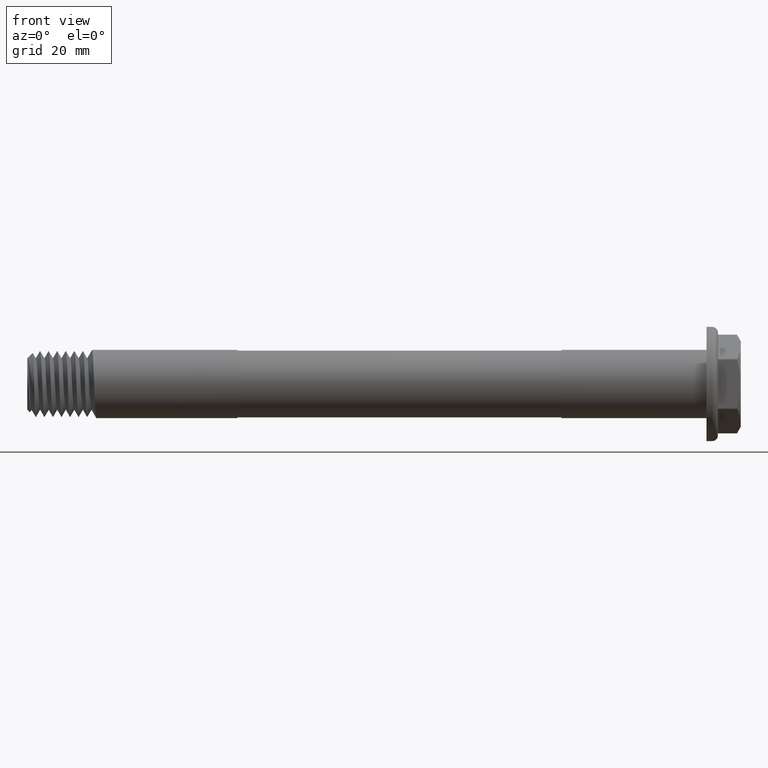
[diagram: clean part render]
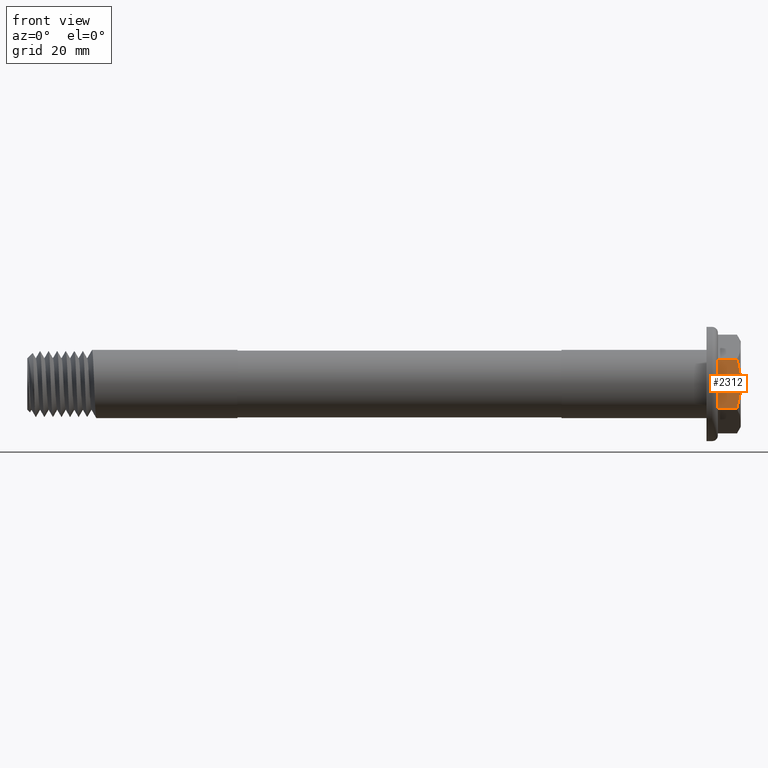
[diagram: same view with one face highlighted and labeled with its STEP entity id]
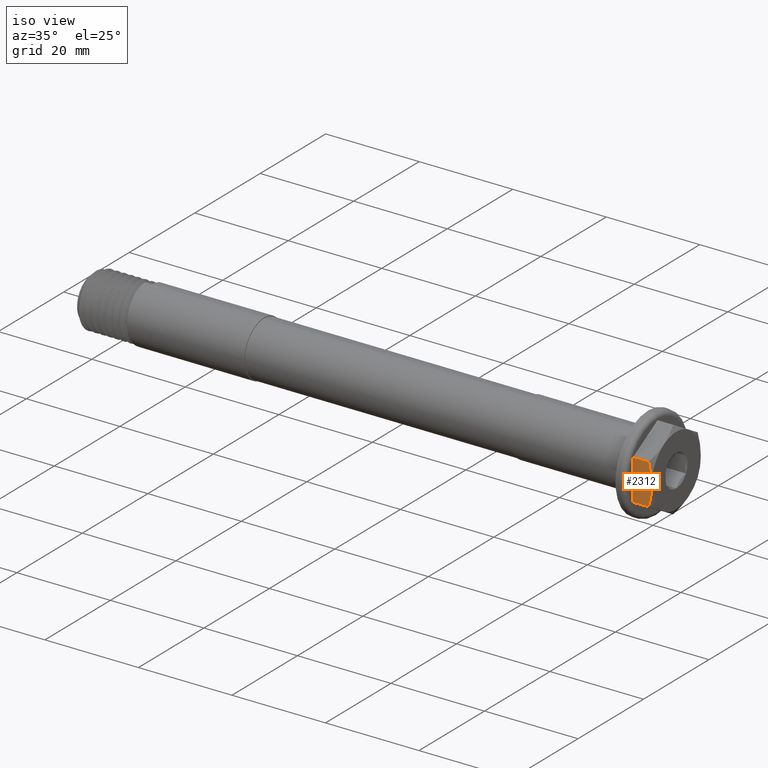
[diagram: same view with one face highlighted and labeled with its STEP entity id]
A machine part, front view. The second image highlights one B-rep face of the part: STEP entity #2312.
A second angle (iso view) of the same face is appended — the face is thin or edge-on in the first view.
In plain terms, the highlighted planar face has unit normal (0, 1, 0).
Its self-contained STEP definition (entity closure, byte-faithful):
#1 = VERTEX_POINT ( 'NONE', #351 ) ;
#3 = CARTESIAN_POINT ( 'NONE',  ( 125.0000000000000000, -7.500000000000000000, 0.0000000000000000000 ) ) ;
#136 = CARTESIAN_POINT ( 'NONE',  ( 124.3301270189222000, -7.500000000000000000, -4.330127018922193600 ) ) ;
#157 = DIRECTION ( 'NONE',  ( 0.0000000000000000000, 0.0000000000000000000, 1.000000000000000000 ) ) ;
#164 = VERTEX_POINT ( 'NONE', #136 ) ;
#166 = DIRECTION ( 'NONE',  ( 0.0000000000000000000, 1.000000000000000000, 0.0000000000000000000 ) ) ;
#191 = CARTESIAN_POINT ( 'NONE',  ( 124.3301270189222000, -7.500000000000000900, 4.330127018922193600 ) ) ;
#202 = EDGE_LOOP ( 'NONE', ( #916, #2317, #912, #2290, #288 ) ) ;
#288 = ORIENTED_EDGE ( 'NONE', *, *, #1281, .F. ) ;
#351 = CARTESIAN_POINT ( 'NONE',  ( 121.0000000000000000, -7.500000000000000000, -4.330127018922193600 ) ) ;
#388 = CARTESIAN_POINT ( 'NONE',  ( 125.0000000000000000, -7.500000000000000000, -4.330127018922193600 ) ) ;
#547 = EDGE_CURVE ( 'NONE', #799, #994, #1300, .T. ) ;
#568 = EDGE_CURVE ( 'NONE', #1251, #1, #626, .T. ) ;
#626 = LINE ( 'NONE', #2364, #1662 ) ;
#627 = PLANE ( 'NONE',  #2008 ) ;
#641 = EDGE_CURVE ( 'NONE', #164, #1, #1590, .T. ) ;
#723 = CARTESIAN_POINT ( 'NONE',  ( 121.0000000000000000, -7.500000000000000900, 4.330127018922193600 ) ) ;
#795 = DIRECTION ( 'NONE',  ( -1.000000000000000000, 0.0000000000000000000, -0.0000000000000000000 ) ) ;
#799 = VERTEX_POINT ( 'NONE', #191 ) ;
#912 = ORIENTED_EDGE ( 'NONE', *, *, #568, .T. ) ;
#916 = ORIENTED_EDGE ( 'NONE', *, *, #547, .F. ) ;
#994 = VERTEX_POINT ( 'NONE', #2023 ) ;
#1010 = DIRECTION ( 'NONE',  ( 0.0000000000000000000, 0.0000000000000000000, -1.000000000000000000 ) ) ;
#1154 = CARTESIAN_POINT ( 'NONE',  ( 125.0000000000000000, -7.500000000000000900, 4.330127018922193600 ) ) ;
#1161 = FACE_OUTER_BOUND ( 'NONE', #202, .T. ) ;
#1251 = VERTEX_POINT ( 'NONE', #723 ) ;
#1281 = EDGE_CURVE ( 'NONE', #994, #164, #1423, .T. ) ;
#1300 = B_SPLINE_CURVE_WITH_KNOTS ( 'NONE', 3,
 ( #2206, #2200, #2194, #2224, #2227, #2235 ),
 .UNSPECIFIED., .F., .F.,
 ( 4, 2, 4 ),
 ( 0.01905899072742830300, 0.02125322305538952100, 0.02344745538335073900 ),
 .UNSPECIFIED. ) ;
#1423 = B_SPLINE_CURVE_WITH_KNOTS ( 'NONE', 3,
 ( #3, #2051, #2038, #1859, #1850, #1838 ),
 .UNSPECIFIED., .F., .F.,
 ( 4, 2, 4 ),
 ( 0.02344745538335073900, 0.02564032813742311500, 0.02783320089149549100 ),
 .UNSPECIFIED. ) ;
#1589 = CARTESIAN_POINT ( 'NONE',  ( 125.0000000000000000, -7.500000000000000000, -4.330127018922193600 ) ) ;
#1590 = LINE ( 'NONE', #1589, #1635 ) ;
#1635 = VECTOR ( 'NONE', #1663, 1000.000000000000000 ) ;
#1662 = VECTOR ( 'NONE', #1010, 1000.000000000000000 ) ;
#1663 = DIRECTION ( 'NONE',  ( -1.000000000000000000, 0.0000000000000000000, -0.0000000000000000000 ) ) ;
#1838 = CARTESIAN_POINT ( 'NONE',  ( 124.3301270189222000, -7.500000000000000000, -4.330127018922193600 ) ) ;
#1850 = CARTESIAN_POINT ( 'NONE',  ( 124.5334724439905500, -7.500000000000000900, -3.625717803512128200 ) ) ;
#1859 = CARTESIAN_POINT ( 'NONE',  ( 124.7039641925002500, -7.500000000000000000, -2.904451433353735900 ) ) ;
#1897 = LINE ( 'NONE', #1154, #1900 ) ;
#1900 = VECTOR ( 'NONE', #795, 1000.000000000000000 ) ;
#1994 = EDGE_CURVE ( 'NONE', #799, #1251, #1897, .T. ) ;
#2008 = AXIS2_PLACEMENT_3D ( 'NONE', #388, #166, #157 ) ;
#2023 = CARTESIAN_POINT ( 'NONE',  ( 125.0000000000000000, -7.500000000000000000, 0.0000000000000000000 ) ) ;
#2038 = CARTESIAN_POINT ( 'NONE',  ( 124.9370824810928200, -7.500000000000000900, -1.458839118293780500 ) ) ;
#2051 = CARTESIAN_POINT ( 'NONE',  ( 125.0000000000000000, -7.500000000000000000, -0.7318643120234033000 ) ) ;
#2194 = CARTESIAN_POINT ( 'NONE',  ( 124.7005627615793600, -7.500000000000000900, 2.920627439322627300 ) ) ;
#2200 = CARTESIAN_POINT ( 'NONE',  ( 124.5322537303537000, -7.500000000000000000, 3.629939551389864700 ) ) ;
#2206 = CARTESIAN_POINT ( 'NONE',  ( 124.3301270189222000, -7.500000000000000900, 4.330127018922193600 ) ) ;
#2224 = CARTESIAN_POINT ( 'NONE',  ( 124.9353291358541000, -7.500000000000000000, 1.474521718993435600 ) ) ;
#2227 = CARTESIAN_POINT ( 'NONE',  ( 125.0000000000000000, -7.500000000000000900, 0.7323180654876474400 ) ) ;
#2235 = CARTESIAN_POINT ( 'NONE',  ( 125.0000000000000000, -7.500000000000000000, 0.0000000000000000000 ) ) ;
#2290 = ORIENTED_EDGE ( 'NONE', *, *, #641, .F. ) ;
#2312 = ADVANCED_FACE ( 'NONE', ( #1161 ), #627, .F. ) ;
#2317 = ORIENTED_EDGE ( 'NONE', *, *, #1994, .T. ) ;
#2364 = CARTESIAN_POINT ( 'NONE',  ( 121.0000000000000000, -7.500000000000000000, -4.330127018922193600 ) ) ;